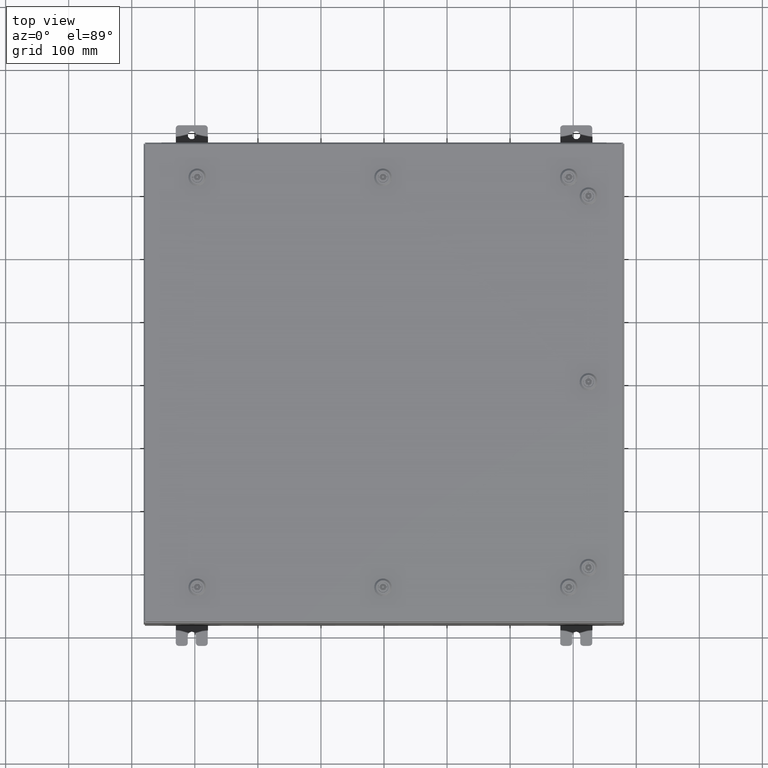
[diagram: clean part render]
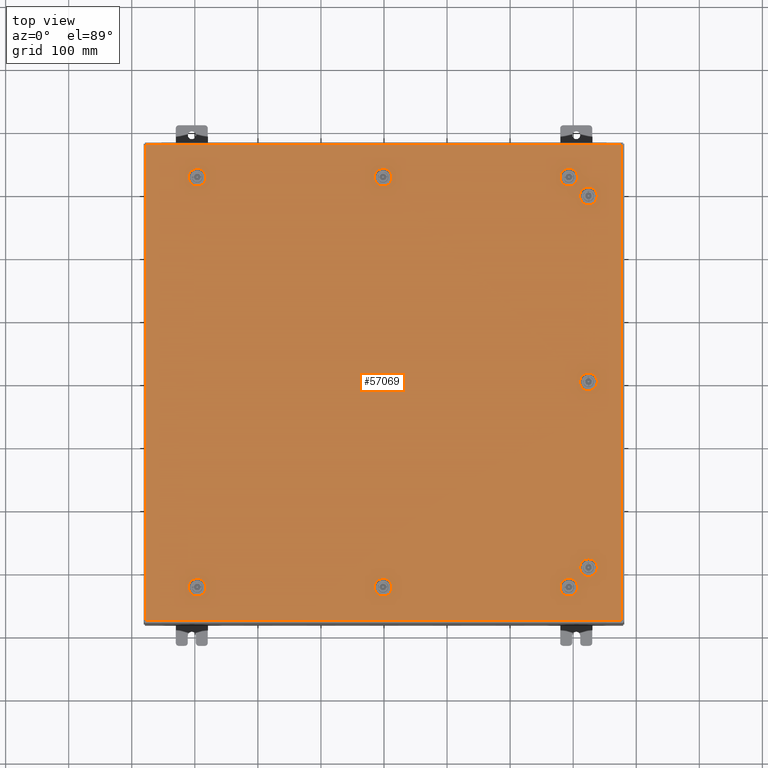
[diagram: same view with one face highlighted and labeled with its STEP entity id]
A machine part, top view. The second image highlights one B-rep face of the part: STEP entity #57069.
In plain terms, the highlighted planar face has unit normal (0, 0, -1).
Its self-contained STEP definition (entity closure, byte-faithful):
#205 = VERTEX_POINT ( 'NONE', #60570 ) ;
#331 = EDGE_CURVE ( 'NONE', #64893, #43094, #19183, .T. ) ;
#400 = EDGE_CURVE ( 'NONE', #8551, #4828, #44568, .T. ) ;
#435 = AXIS2_PLACEMENT_3D ( 'NONE', #62113, #31691, #1348 ) ;
#598 = VECTOR ( 'NONE', #64485, 39.37007874015748100 ) ;
#669 = CARTESIAN_POINT ( 'NONE',  ( -0.1994523752678657400, -13.18279999999999000, 0.0000000000000000000 ) ) ;
#986 = VERTEX_POINT ( 'NONE', #44279 ) ;
#989 = CIRCLE ( 'NONE', #33815, 0.4424999999999961700 ) ;
#1260 = EDGE_CURVE ( 'NONE', #13323, #46178, #4560, .T. ) ;
#1348 = DIRECTION ( 'NONE',  ( 1.000000000000000000, 0.0000000000000000000, 6.982962677686252500E-015 ) ) ;
#1532 = DIRECTION ( 'NONE',  ( 1.000000000000000000, 0.0000000000000000000, 6.982962677686277800E-015 ) ) ;
#1664 = ORIENTED_EDGE ( 'NONE', *, *, #22343, .F. ) ;
#1752 = VERTEX_POINT ( 'NONE', #4967 ) ;
#1821 = CIRCLE ( 'NONE', #24889, 0.4424999999999983400 ) ;
#1896 = DIRECTION ( 'NONE',  ( -1.000000000000000000, 1.095739467627836100E-014, 0.0000000000000000000 ) ) ;
#2114 = AXIS2_PLACEMENT_3D ( 'NONE', #46570, #16168, #51679 ) ;
#2235 = CARTESIAN_POINT ( 'NONE',  ( -14.84979999999999700, -14.84979999999999700, -2.048885995248197400E-016 ) ) ;
#2386 = ORIENTED_EDGE ( 'NONE', *, *, #4836, .F. ) ;
#2408 = LINE ( 'NONE', #47123, #54739 ) ;
#2555 = CARTESIAN_POINT ( 'NONE',  ( 0.1994523752679067700, 13.18279999999998400, 0.0000000000000000000 ) ) ;
#2787 = ORIENTED_EDGE ( 'NONE', *, *, #34301, .F. ) ;
#2951 = VECTOR ( 'NONE', #15252, 39.37007874015748100 ) ;
#3021 = VERTEX_POINT ( 'NONE', #26480 ) ;
#3325 = ORIENTED_EDGE ( 'NONE', *, *, #57304, .F. ) ;
#3448 = CARTESIAN_POINT ( 'NONE',  ( 1.529834876451987200E-014, -12.78779999999999400, -2.521317385144146900E-013 ) ) ;
#3872 = EDGE_CURVE ( 'NONE', #36500, #35626, #31450, .T. ) ;
#3894 = EDGE_CURVE ( 'NONE', #62199, #14280, #4502, .T. ) ;
#3900 = EDGE_LOOP ( 'NONE', ( #50390, #63501, #17277, #1664, #2386 ) ) ;
#3963 = CARTESIAN_POINT ( 'NONE',  ( -11.11999999999998700, -12.78779999999999400, -2.521317385144146900E-013 ) ) ;
#4236 = AXIS2_PLACEMENT_3D ( 'NONE', #21788, #57263, #26875 ) ;
#4448 = CIRCLE ( 'NONE', #33165, 0.4424999999999961700 ) ;
#4462 = CARTESIAN_POINT ( 'NONE',  ( -11.36304762473208800, 13.18279999999998400, 0.0000000000000000000 ) ) ;
#4502 = LINE ( 'NONE', #65616, #2951 ) ;
#4560 = LINE ( 'NONE', #9620, #29924 ) ;
#4828 = VERTEX_POINT ( 'NONE', #30332 ) ;
#4836 = EDGE_CURVE ( 'NONE', #28978, #41267, #4448, .T. ) ;
#4852 = VERTEX_POINT ( 'NONE', #57745 ) ;
#4893 = LINE ( 'NONE', #58389, #16784 ) ;
#4967 = CARTESIAN_POINT ( 'NONE',  ( 0.4425000000000126100, -12.78779999999999400, -2.521317385144146900E-013 ) ) ;
#5069 = CIRCLE ( 'NONE', #56190, 0.4424999999999973400 ) ;
#5098 = FACE_BOUND ( 'NONE', #31542, .T. ) ;
#5961 = CARTESIAN_POINT ( 'NONE',  ( 11.36304762473209700, 12.39279999999999800, -2.414586126232981000E-013 ) ) ;
#6234 = ORIENTED_EDGE ( 'NONE', *, *, #8782, .F. ) ;
#6690 = VECTOR ( 'NONE', #51463, 39.37007874015748100 ) ;
#6709 = FACE_BOUND ( 'NONE', #3900, .T. ) ;
#6889 = LINE ( 'NONE', #60741, #32252 ) ;
#6947 = CIRCLE ( 'NONE', #21381, 0.4424999999999983400 ) ;
#6981 = CARTESIAN_POINT ( 'NONE',  ( 13.18280000000000200, 11.76195237526789900, 0.0000000000000000000 ) ) ;
#7011 = CARTESIAN_POINT ( 'NONE',  ( 0.1994523752678995500, -12.39279999999999800, -2.493734682567286900E-013 ) ) ;
#7100 = EDGE_CURVE ( 'NONE', #35104, #36500, #5069, .T. ) ;
#7179 = ORIENTED_EDGE ( 'NONE', *, *, #65684, .F. ) ;
#7224 = DIRECTION ( 'NONE',  ( 1.000000000000000000, 0.0000000000000000000, -6.982962677686265900E-015 ) ) ;
#7427 = EDGE_CURVE ( 'NONE', #12297, #63191, #59847, .T. ) ;
#7543 = EDGE_LOOP ( 'NONE', ( #14383, #64559, #41786, #14740 ) ) ;
#7994 = ORIENTED_EDGE ( 'NONE', *, *, #41756, .F. ) ;
#8079 = ORIENTED_EDGE ( 'NONE', *, *, #57499, .F. ) ;
#8169 = CIRCLE ( 'NONE', #34136, 0.4424999999999983400 ) ;
#8316 = LINE ( 'NONE', #40780, #6690 ) ;
#8327 = FACE_BOUND ( 'NONE', #15483, .T. ) ;
#8545 = DIRECTION ( 'NONE',  ( 0.0000000000000000000, 1.000000000000000000, 6.982962677686270700E-015 ) ) ;
#8551 = VERTEX_POINT ( 'NONE', #16790 ) ;
#8632 = ORIENTED_EDGE ( 'NONE', *, *, #32833, .F. ) ;
#8775 = CARTESIAN_POINT ( 'NONE',  ( 12.78780000000000600, 11.56250000000001600, 0.0000000000000000000 ) ) ;
#8782 = EDGE_CURVE ( 'NONE', #54814, #62199, #8169, .T. ) ;
#9024 = AXIS2_PLACEMENT_3D ( 'NONE', #17255, #52752, #22382 ) ;
#9123 = ORIENTED_EDGE ( 'NONE', *, *, #60568, .F. ) ;
#9489 = VERTEX_POINT ( 'NONE', #64597 ) ;
#9620 = CARTESIAN_POINT ( 'NONE',  ( 13.18280000000000200, 0.1994523752679009100, 0.0000000000000000000 ) ) ;
#9682 = ORIENTED_EDGE ( 'NONE', *, *, #32854, .F. ) ;
#9738 = DIRECTION ( 'NONE',  ( 1.000000000000000000, -1.095739467627832000E-014, 6.982962677686152300E-015 ) ) ;
#10231 = CARTESIAN_POINT ( 'NONE',  ( 11.36304762473209200, -13.18279999999998400, -1.343139614880270700E-014 ) ) ;
#10593 = LINE ( 'NONE', #7011, #34369 ) ;
#11143 = CIRCLE ( 'NONE', #9024, 0.4424999999999983400 ) ;
#12015 = CARTESIAN_POINT ( 'NONE',  ( -11.36304762473210100, -12.39279999999999800, -2.493734682567286900E-013 ) ) ;
#12046 = AXIS2_PLACEMENT_3D ( 'NONE', #41078, #30889, #51333 ) ;
#12194 = DIRECTION ( 'NONE',  ( 1.000000000000000000, -0.0000000000000000000, -0.0000000000000000000 ) ) ;
#12297 = VERTEX_POINT ( 'NONE', #34476 ) ;
#12433 = DIRECTION ( 'NONE',  ( -0.0000000000000000000, -6.982962677686266700E-015, 1.000000000000000000 ) ) ;
#12629 = LINE ( 'NONE', #31029, #63383 ) ;
#12681 = ORIENTED_EDGE ( 'NONE', *, *, #53684, .T. ) ;
#13145 = EDGE_LOOP ( 'NONE', ( #2787, #56945, #7179, #13226 ) ) ;
#13197 = LINE ( 'NONE', #60633, #63956 ) ;
#13226 = ORIENTED_EDGE ( 'NONE', *, *, #42422, .F. ) ;
#13323 = VERTEX_POINT ( 'NONE', #16164 ) ;
#13687 = ORIENTED_EDGE ( 'NONE', *, *, #55825, .F. ) ;
#13723 = CARTESIAN_POINT ( 'NONE',  ( 0.1994523752679067700, -13.18279999999998400, -2.548900087721007400E-013 ) ) ;
#13871 = DIRECTION ( 'NONE',  ( 1.000000000000000000, 0.0000000000000000000, 0.0000000000000000000 ) ) ;
#13985 = CARTESIAN_POINT ( 'NONE',  ( 11.76195237526786700, -12.39279999999999800, 0.0000000000000000000 ) ) ;
#14084 = LINE ( 'NONE', #13723, #598 ) ;
#14159 = ORIENTED_EDGE ( 'NONE', *, *, #28937, .F. ) ;
#14188 = ORIENTED_EDGE ( 'NONE', *, *, #15878, .F. ) ;
#14280 = VERTEX_POINT ( 'NONE', #33969 ) ;
#14315 = VERTEX_POINT ( 'NONE', #64586 ) ;
#14321 = ORIENTED_EDGE ( 'NONE', *, *, #28592, .F. ) ;
#14383 = ORIENTED_EDGE ( 'NONE', *, *, #1260, .F. ) ;
#14453 = VECTOR ( 'NONE', #52211, 39.37007874015748100 ) ;
#14460 = CIRCLE ( 'NONE', #2114, 0.4424999999999961700 ) ;
#14588 = EDGE_LOOP ( 'NONE', ( #25215, #31810, #49323, #12681 ) ) ;
#14740 = ORIENTED_EDGE ( 'NONE', *, *, #21955, .F. ) ;
#14828 = CARTESIAN_POINT ( 'NONE',  ( 12.00499999999997900, 12.78779999999999400, -2.459413421006457100E-013 ) ) ;
#15059 = VERTEX_POINT ( 'NONE', #24368 ) ;
#15252 = DIRECTION ( 'NONE',  ( 1.000000000000000000, 1.095739467627832000E-014, 7.785697190085955000E-029 ) ) ;
#15393 = LINE ( 'NONE', #27282, #55889 ) ;
#15483 = EDGE_LOOP ( 'NONE', ( #57832, #33225, #8079, #21609 ) ) ;
#15495 = DIRECTION ( 'NONE',  ( -0.0000000000000000000, -6.982962677686266700E-015, 1.000000000000000000 ) ) ;
#15781 = CARTESIAN_POINT ( 'NONE',  ( 1.529834876451987200E-014, 12.78779999999999400, 0.0000000000000000000 ) ) ;
#15853 = DIRECTION ( 'NONE',  ( -1.095739467627838000E-014, -1.000000000000000000, 0.0000000000000000000 ) ) ;
#15878 = EDGE_CURVE ( 'NONE', #51014, #9489, #14460, .T. ) ;
#15939 = DIRECTION ( 'NONE',  ( 0.0000000000000000000, 0.0000000000000000000, 1.000000000000000000 ) ) ;
#16004 = LINE ( 'NONE', #16703, #14453 ) ;
#16164 = CARTESIAN_POINT ( 'NONE',  ( 13.18280000000000700, -0.1994523752678676000, 0.0000000000000000000 ) ) ;
#16168 = DIRECTION ( 'NONE',  ( 6.982962677686266700E-015, -0.0000000000000000000, 1.000000000000000000 ) ) ;
#16250 = VERTEX_POINT ( 'NONE', #3963 ) ;
#16437 = AXIS2_PLACEMENT_3D ( 'NONE', #46341, #15939, #51451 ) ;
#16483 = CARTESIAN_POINT ( 'NONE',  ( 12.78780000000000600, 1.529834876451990400E-014, 0.0000000000000000000 ) ) ;
#16703 = CARTESIAN_POINT ( 'NONE',  ( 11.36304762473210100, -12.39279999999999800, -7.914855633430593000E-015 ) ) ;
#16784 = VECTOR ( 'NONE', #63472, 39.37007874015748100 ) ;
#16790 = CARTESIAN_POINT ( 'NONE',  ( 11.36304762473209700, 12.39279999999999800, -2.414586126232981000E-013 ) ) ;
#17167 = EDGE_CURVE ( 'NONE', #9489, #26797, #46905, .T. ) ;
#17216 = EDGE_CURVE ( 'NONE', #3021, #57021, #45320, .T. ) ;
#17255 = CARTESIAN_POINT ( 'NONE',  ( -11.56249999999998200, 12.78779999999999400, 0.0000000000000000000 ) ) ;
#17277 = ORIENTED_EDGE ( 'NONE', *, *, #17216, .F. ) ;
#17308 = AXIS2_PLACEMENT_3D ( 'NONE', #28843, #64329, #33931 ) ;
#17719 = VERTEX_POINT ( 'NONE', #59701 ) ;
#17927 = AXIS2_PLACEMENT_3D ( 'NONE', #57788, #27410, #62900 ) ;
#18062 = DIRECTION ( 'NONE',  ( 1.000000000000000000, -0.0000000000000000000, -0.0000000000000000000 ) ) ;
#18175 = ORIENTED_EDGE ( 'NONE', *, *, #7100, .F. ) ;
#18187 = EDGE_CURVE ( 'NONE', #43157, #48120, #11143, .T. ) ;
#18246 = DIRECTION ( 'NONE',  ( 0.0000000000000000000, 0.0000000000000000000, 1.000000000000000000 ) ) ;
#18260 = CARTESIAN_POINT ( 'NONE',  ( -11.76195237526786600, -13.18279999999999000, 0.0000000000000000000 ) ) ;
#18618 = FACE_BOUND ( 'NONE', #53941, .T. ) ;
#18982 = EDGE_CURVE ( 'NONE', #22982, #17719, #2408, .T. ) ;
#19183 = LINE ( 'NONE', #22138, #31021 ) ;
#19256 = DIRECTION ( 'NONE',  ( 0.0000000000000000000, 0.0000000000000000000, 1.000000000000000000 ) ) ;
#19385 = VERTEX_POINT ( 'NONE', #44427 ) ;
#20152 = CARTESIAN_POINT ( 'NONE',  ( 12.39280000000001400, 0.1994523752679062100, 0.0000000000000000000 ) ) ;
#20193 = FACE_BOUND ( 'NONE', #13145, .T. ) ;
#20397 = CARTESIAN_POINT ( 'NONE',  ( -11.56249999999998200, -12.78779999999999400, -2.521317385144146900E-013 ) ) ;
#20530 = VERTEX_POINT ( 'NONE', #44040 ) ;
#20579 = EDGE_LOOP ( 'NONE', ( #21848, #7994, #53247, #27657, #9123 ) ) ;
#20765 = CARTESIAN_POINT ( 'NONE',  ( -11.56249999999998200, 12.78779999999999400, 0.0000000000000000000 ) ) ;
#20924 = DIRECTION ( 'NONE',  ( 1.000000000000000000, 0.0000000000000000000, 0.0000000000000000000 ) ) ;
#21087 = LINE ( 'NONE', #45365, #59991 ) ;
#21138 = CARTESIAN_POINT ( 'NONE',  ( 11.36304762473210100, -12.39279999999999800, -7.914855633430593000E-015 ) ) ;
#21261 = CIRCLE ( 'NONE', #40855, 0.4424999999999961700 ) ;
#21381 = AXIS2_PLACEMENT_3D ( 'NONE', #22825, #58286, #27919 ) ;
#21516 = CARTESIAN_POINT ( 'NONE',  ( 12.39280000000001400, -11.76195237526790500, -2.443558770110843000E-013 ) ) ;
#21525 = VECTOR ( 'NONE', #26392, 39.37007874015748100 ) ;
#21602 = DIRECTION ( 'NONE',  ( 1.000000000000000000, 0.0000000000000000000, 0.0000000000000000000 ) ) ;
#21609 = ORIENTED_EDGE ( 'NONE', *, *, #51387, .F. ) ;
#21788 = CARTESIAN_POINT ( 'NONE',  ( 1.529834876451987200E-014, -12.78779999999999400, -2.521317385144146900E-013 ) ) ;
#21848 = ORIENTED_EDGE ( 'NONE', *, *, #52165, .F. ) ;
#21955 = EDGE_CURVE ( 'NONE', #46178, #22982, #43413, .T. ) ;
#22138 = CARTESIAN_POINT ( 'NONE',  ( 14.84979999999999700, 14.84980000000000000, -1.297627796990525000E-015 ) ) ;
#22343 = EDGE_CURVE ( 'NONE', #41267, #3021, #6889, .T. ) ;
#22382 = DIRECTION ( 'NONE',  ( 1.000000000000000000, 0.0000000000000000000, 0.0000000000000000000 ) ) ;
#22401 = CARTESIAN_POINT ( 'NONE',  ( 12.39280000000001400, 11.76195237526790500, 0.0000000000000000000 ) ) ;
#22522 = VERTEX_POINT ( 'NONE', #6981 ) ;
#22825 = CARTESIAN_POINT ( 'NONE',  ( -11.56249999999998200, 12.78779999999999400, 0.0000000000000000000 ) ) ;
#22982 = VERTEX_POINT ( 'NONE', #20152 ) ;
#23249 = ORIENTED_EDGE ( 'NONE', *, *, #51956, .F. ) ;
#23258 = CIRCLE ( 'NONE', #40424, 0.4424999999999983400 ) ;
#23265 = CARTESIAN_POINT ( 'NONE',  ( -11.11999999999998300, 12.78779999999999400, 0.0000000000000000000 ) ) ;
#23299 = CARTESIAN_POINT ( 'NONE',  ( -11.76195237526786700, -12.39279999999999800, -2.493734682567286400E-013 ) ) ;
#23310 = CARTESIAN_POINT ( 'NONE',  ( 12.39280000000001400, 11.76195237526790500, 0.0000000000000000000 ) ) ;
#23567 = ORIENTED_EDGE ( 'NONE', *, *, #50338, .F. ) ;
#23743 = EDGE_CURVE ( 'NONE', #26289, #39053, #21087, .T. ) ;
#24116 = EDGE_CURVE ( 'NONE', #39053, #64893, #38513, .T. ) ;
#24368 = CARTESIAN_POINT ( 'NONE',  ( 0.1994523752678995500, -12.39279999999999800, -2.493734682567286900E-013 ) ) ;
#24889 = AXIS2_PLACEMENT_3D ( 'NONE', #48630, #18246, #53733 ) ;
#24914 = ORIENTED_EDGE ( 'NONE', *, *, #26040, .F. ) ;
#25215 = ORIENTED_EDGE ( 'NONE', *, *, #23743, .T. ) ;
#25506 = DIRECTION ( 'NONE',  ( 0.0000000000000000000, 1.000000000000000000, 6.982962677686304600E-015 ) ) ;
#25859 = DIRECTION ( 'NONE',  ( 1.000000000000000000, 0.0000000000000000000, 0.0000000000000000000 ) ) ;
#26040 = EDGE_CURVE ( 'NONE', #35626, #20530, #56729, .T. ) ;
#26289 = VERTEX_POINT ( 'NONE', #2235 ) ;
#26392 = DIRECTION ( 'NONE',  ( -1.000000000000000000, -1.095739467627832000E-014, 6.982962677686228800E-015 ) ) ;
#26480 = CARTESIAN_POINT ( 'NONE',  ( 11.76195237526786600, -13.18279999999999000, -1.064585916385969600E-014 ) ) ;
#26797 = VERTEX_POINT ( 'NONE', #42674 ) ;
#26875 = DIRECTION ( 'NONE',  ( 0.0000000000000000000, 1.000000000000000000, 6.982962677686270700E-015 ) ) ;
#26973 = CARTESIAN_POINT ( 'NONE',  ( 1.529834876451987200E-014, -12.78779999999999400, -2.521317385144146900E-013 ) ) ;
#27257 = DIRECTION ( 'NONE',  ( 6.982962677686266700E-015, -0.0000000000000000000, 1.000000000000000000 ) ) ;
#27282 = CARTESIAN_POINT ( 'NONE',  ( -11.36304762473208800, 13.18279999999998400, 0.0000000000000000000 ) ) ;
#27290 = CARTESIAN_POINT ( 'NONE',  ( 14.84979999999999700, -14.84979999999999500, -2.048885995248197400E-016 ) ) ;
#27410 = DIRECTION ( 'NONE',  ( 6.982962677686266700E-015, -0.0000000000000000000, 1.000000000000000000 ) ) ;
#27657 = ORIENTED_EDGE ( 'NONE', *, *, #29053, .F. ) ;
#27732 = CARTESIAN_POINT ( 'NONE',  ( 12.39280000000001000, 11.36304762473213300, 0.0000000000000000000 ) ) ;
#27911 = CARTESIAN_POINT ( 'NONE',  ( -14.84979999999999700, 14.84979999999999700, -2.048885995248197400E-016 ) ) ;
#27919 = DIRECTION ( 'NONE',  ( 1.000000000000000000, 0.0000000000000000000, 0.0000000000000000000 ) ) ;
#28221 = AXIS2_PLACEMENT_3D ( 'NONE', #42784, #12433, #47907 ) ;
#28405 = VERTEX_POINT ( 'NONE', #42435 ) ;
#28469 = ORIENTED_EDGE ( 'NONE', *, *, #17167, .F. ) ;
#28592 = EDGE_CURVE ( 'NONE', #20530, #4852, #36135, .T. ) ;
#28843 = CARTESIAN_POINT ( 'NONE',  ( 11.56249999999998200, -12.78779999999999400, -9.280357398645127900E-015 ) ) ;
#28937 = EDGE_CURVE ( 'NONE', #4852, #35104, #40114, .T. ) ;
#28978 = VERTEX_POINT ( 'NONE', #21138 ) ;
#29048 = AXIS2_PLACEMENT_3D ( 'NONE', #20765, #56239, #25859 ) ;
#29053 = EDGE_CURVE ( 'NONE', #1752, #15059, #65521, .T. ) ;
#29299 = CIRCLE ( 'NONE', #29714, 0.4424999999999983400 ) ;
#29714 = AXIS2_PLACEMENT_3D ( 'NONE', #49629, #19256, #54725 ) ;
#29924 = VECTOR ( 'NONE', #38068, 39.37007874015748100 ) ;
#30332 = CARTESIAN_POINT ( 'NONE',  ( 11.76195237526786600, 12.39279999999999800, -2.442441496082410700E-013 ) ) ;
#30660 = CARTESIAN_POINT ( 'NONE',  ( 13.18280000000000200, 11.76195237526789900, 0.0000000000000000000 ) ) ;
#30824 = VERTEX_POINT ( 'NONE', #27732 ) ;
#30880 = DIRECTION ( 'NONE',  ( -5.478697338139220100E-015, 1.000000000000000000, -0.0000000000000000000 ) ) ;
#30883 = DIRECTION ( 'NONE',  ( 0.0000000000000000000, 1.000000000000000000, 6.982962677686270700E-015 ) ) ;
#30889 = DIRECTION ( 'NONE',  ( 0.0000000000000000000, 0.0000000000000000000, -1.000000000000000000 ) ) ;
#31021 = VECTOR ( 'NONE', #36139, 39.37007874015748100 ) ;
#31027 = CIRCLE ( 'NONE', #39318, 0.4424999999999983400 ) ;
#31029 = CARTESIAN_POINT ( 'NONE',  ( 13.18280000000000200, -11.76195237526789900, -2.443558770110843000E-013 ) ) ;
#31072 = VECTOR ( 'NONE', #30880, 39.37007874015748100 ) ;
#31450 = LINE ( 'NONE', #2555, #33052 ) ;
#31542 = EDGE_LOOP ( 'NONE', ( #14321, #24914, #37548, #18175, #14159 ) ) ;
#31691 = DIRECTION ( 'NONE',  ( -6.982962677686266700E-015, -6.982962677686266700E-015, 1.000000000000000000 ) ) ;
#31810 = ORIENTED_EDGE ( 'NONE', *, *, #24116, .T. ) ;
#32045 = DIRECTION ( 'NONE',  ( 0.0000000000000000000, 1.000000000000000000, 6.982962677686304600E-015 ) ) ;
#32062 = FACE_BOUND ( 'NONE', #45865, .T. ) ;
#32228 = EDGE_CURVE ( 'NONE', #4828, #51014, #55791, .T. ) ;
#32252 = VECTOR ( 'NONE', #9738, 39.37007874015748100 ) ;
#32833 = EDGE_CURVE ( 'NONE', #26797, #8551, #23258, .T. ) ;
#32840 = VECTOR ( 'NONE', #15853, 39.37007874015748100 ) ;
#32854 = EDGE_CURVE ( 'NONE', #43111, #14315, #48631, .T. ) ;
#33052 = VECTOR ( 'NONE', #1896, 39.37007874015748100 ) ;
#33165 = AXIS2_PLACEMENT_3D ( 'NONE', #58499, #45797, #1532 ) ;
#33225 = ORIENTED_EDGE ( 'NONE', *, *, #42012, .F. ) ;
#33542 = CIRCLE ( 'NONE', #63558, 0.4424999999999961700 ) ;
#33815 = AXIS2_PLACEMENT_3D ( 'NONE', #45906, #15495, #51017 ) ;
#33931 = DIRECTION ( 'NONE',  ( 1.000000000000000000, 0.0000000000000000000, 6.982962677686252500E-015 ) ) ;
#33969 = CARTESIAN_POINT ( 'NONE',  ( -11.36304762473209200, -13.18279999999998400, -2.548900087721007400E-013 ) ) ;
#33972 = ORIENTED_EDGE ( 'NONE', *, *, #400, .F. ) ;
#34064 = ORIENTED_EDGE ( 'NONE', *, *, #32228, .F. ) ;
#34136 = AXIS2_PLACEMENT_3D ( 'NONE', #35317, #35543, #30883 ) ;
#34301 = EDGE_CURVE ( 'NONE', #63191, #48500, #4893, .T. ) ;
#34369 = VECTOR ( 'NONE', #51428, 39.37007874015748100 ) ;
#34476 = CARTESIAN_POINT ( 'NONE',  ( 13.18280000000000400, -11.36304762473213100, -2.415703400261412700E-013 ) ) ;
#35104 = VERTEX_POINT ( 'NONE', #44838 ) ;
#35317 = CARTESIAN_POINT ( 'NONE',  ( -11.56249999999998200, -12.78779999999999400, -2.521317385144146900E-013 ) ) ;
#35413 = EDGE_CURVE ( 'NONE', #16250, #40276, #61182, .T. ) ;
#35543 = DIRECTION ( 'NONE',  ( -0.0000000000000000000, -6.982962677686266700E-015, 1.000000000000000000 ) ) ;
#35626 = VERTEX_POINT ( 'NONE', #44553 ) ;
#35728 = CIRCLE ( 'NONE', #17308, 0.4424999999999983400 ) ;
#36124 = DIRECTION ( 'NONE',  ( 5.478697338139220100E-015, 1.000000000000000000, 6.982962677686306200E-015 ) ) ;
#36135 = LINE ( 'NONE', #48669, #49691 ) ;
#36139 = DIRECTION ( 'NONE',  ( -1.000000000000000000, -0.0000000000000000000, -0.0000000000000000000 ) ) ;
#36500 = VERTEX_POINT ( 'NONE', #45031 ) ;
#36506 = ORIENTED_EDGE ( 'NONE', *, *, #18187, .F. ) ;
#36882 = VECTOR ( 'NONE', #62396, 39.37007874015748100 ) ;
#37127 = AXIS2_PLACEMENT_3D ( 'NONE', #16483, #51981, #21602 ) ;
#37309 = CARTESIAN_POINT ( 'NONE',  ( 14.84979999999999700, -14.84979999999999500, -2.048885995248197400E-016 ) ) ;
#37424 = CARTESIAN_POINT ( 'NONE',  ( -11.36304762473209700, 12.39279999999999800, 0.0000000000000000000 ) ) ;
#37548 = ORIENTED_EDGE ( 'NONE', *, *, #3872, .F. ) ;
#38068 = DIRECTION ( 'NONE',  ( -5.478697338139235000E-015, 1.000000000000000000, -0.0000000000000000000 ) ) ;
#38513 = LINE ( 'NONE', #37309, #36882 ) ;
#38748 = ORIENTED_EDGE ( 'NONE', *, *, #35413, .F. ) ;
#38906 = DIRECTION ( 'NONE',  ( -0.0000000000000000000, -6.982962677686266700E-015, 1.000000000000000000 ) ) ;
#39053 = VERTEX_POINT ( 'NONE', #27290 ) ;
#39318 = AXIS2_PLACEMENT_3D ( 'NONE', #3448, #38906, #8545 ) ;
#40114 = CIRCLE ( 'NONE', #53112, 0.4424999999999973400 ) ;
#40231 = DIRECTION ( 'NONE',  ( 1.000000000000000000, -0.0000000000000000000, -0.0000000000000000000 ) ) ;
#40276 = VERTEX_POINT ( 'NONE', #12015 ) ;
#40424 = AXIS2_PLACEMENT_3D ( 'NONE', #57634, #27257, #62741 ) ;
#40780 = CARTESIAN_POINT ( 'NONE',  ( -11.36304762473210100, -12.39279999999999800, -2.493734682567286900E-013 ) ) ;
#40855 = AXIS2_PLACEMENT_3D ( 'NONE', #8775, #44222, #13871 ) ;
#40956 = CARTESIAN_POINT ( 'NONE',  ( 1.529834876451987200E-014, 12.78779999999999400, 0.0000000000000000000 ) ) ;
#41078 = CARTESIAN_POINT ( 'NONE',  ( 0.0000000000000000000, 0.0000000000000000000, 0.0000000000000000000 ) ) ;
#41172 = DIRECTION ( 'NONE',  ( 0.0000000000000000000, 0.0000000000000000000, 1.000000000000000000 ) ) ;
#41267 = VERTEX_POINT ( 'NONE', #10231 ) ;
#41411 = DIRECTION ( 'NONE',  ( 1.000000000000000000, 0.0000000000000000000, 0.0000000000000000000 ) ) ;
#41756 = EDGE_CURVE ( 'NONE', #986, #58443, #33542, .T. ) ;
#41786 = ORIENTED_EDGE ( 'NONE', *, *, #18982, .F. ) ;
#42012 = EDGE_CURVE ( 'NONE', #30824, #205, #1821, .T. ) ;
#42422 = EDGE_CURVE ( 'NONE', #48500, #19385, #989, .T. ) ;
#42435 = CARTESIAN_POINT ( 'NONE',  ( -11.76195237526786200, 13.18279999999999000, 0.0000000000000000000 ) ) ;
#42674 = CARTESIAN_POINT ( 'NONE',  ( 11.36304762473208800, 13.18279999999998400, -2.414586126232980000E-013 ) ) ;
#42784 = CARTESIAN_POINT ( 'NONE',  ( -11.56249999999998200, -12.78779999999999400, -2.521317385144146900E-013 ) ) ;
#43094 = VERTEX_POINT ( 'NONE', #27911 ) ;
#43111 = VERTEX_POINT ( 'NONE', #58509 ) ;
#43157 = VERTEX_POINT ( 'NONE', #23265 ) ;
#43413 = CIRCLE ( 'NONE', #37127, 0.4424999999999983400 ) ;
#44040 = CARTESIAN_POINT ( 'NONE',  ( -0.1994523752678689600, 12.39279999999999800, 0.0000000000000000000 ) ) ;
#44075 = CARTESIAN_POINT ( 'NONE',  ( 0.1994523752679070700, -13.18279999999998400, -2.548900087721007400E-013 ) ) ;
#44222 = DIRECTION ( 'NONE',  ( 0.0000000000000000000, 0.0000000000000000000, 1.000000000000000000 ) ) ;
#44275 = EDGE_CURVE ( 'NONE', #57021, #45860, #35728, .T. ) ;
#44277 = CARTESIAN_POINT ( 'NONE',  ( 14.84979999999999700, 14.84980000000000000, -1.297627796990525000E-015 ) ) ;
#44279 = CARTESIAN_POINT ( 'NONE',  ( -0.1994523752678689600, -12.39279999999999800, -2.493734682567286400E-013 ) ) ;
#44427 = CARTESIAN_POINT ( 'NONE',  ( 13.18280000000000200, -11.76195237526789900, -2.443558770110843000E-013 ) ) ;
#44553 = CARTESIAN_POINT ( 'NONE',  ( -0.1994523752678657400, 13.18279999999999000, 0.0000000000000000000 ) ) ;
#44568 = LINE ( 'NONE', #5961, #56463 ) ;
#44838 = CARTESIAN_POINT ( 'NONE',  ( 0.4425000000000126100, 12.78779999999999400, 0.0000000000000000000 ) ) ;
#45031 = CARTESIAN_POINT ( 'NONE',  ( 0.1994523752679068500, 13.18279999999998400, 0.0000000000000000000 ) ) ;
#45313 = DIRECTION ( 'NONE',  ( 0.0000000000000000000, -1.000000000000000000, 0.0000000000000000000 ) ) ;
#45320 = CIRCLE ( 'NONE', #435, 0.4424999999999983400 ) ;
#45365 = CARTESIAN_POINT ( 'NONE',  ( -14.84979999999999700, -14.84979999999999700, -2.048885995248197400E-016 ) ) ;
#45584 = FACE_BOUND ( 'NONE', #20579, .T. ) ;
#45797 = DIRECTION ( 'NONE',  ( -6.982962677686266700E-015, -6.982962677686266700E-015, 1.000000000000000000 ) ) ;
#45860 = VERTEX_POINT ( 'NONE', #13985 ) ;
#45865 = EDGE_LOOP ( 'NONE', ( #28469, #14188, #34064, #33972, #8632 ) ) ;
#45906 = CARTESIAN_POINT ( 'NONE',  ( 12.78780000000000600, -11.56250000000001600, -2.429631085186127900E-013 ) ) ;
#46178 = VERTEX_POINT ( 'NONE', #52327 ) ;
#46232 = PLANE ( 'NONE',  #12046 ) ;
#46341 = CARTESIAN_POINT ( 'NONE',  ( 1.529834876451987200E-014, 12.78779999999999400, 0.0000000000000000000 ) ) ;
#46443 = VERTEX_POINT ( 'NONE', #44075 ) ;
#46570 = CARTESIAN_POINT ( 'NONE',  ( 11.56249999999998200, 12.78779999999999400, -2.428513811157696100E-013 ) ) ;
#46905 = LINE ( 'NONE', #56780, #21525 ) ;
#47123 = CARTESIAN_POINT ( 'NONE',  ( 12.39280000000001400, 0.1994523752679053800, 0.0000000000000000000 ) ) ;
#47179 = FACE_BOUND ( 'NONE', #7543, .T. ) ;
#47262 = VERTEX_POINT ( 'NONE', #22401 ) ;
#47466 = CARTESIAN_POINT ( 'NONE',  ( 12.39280000000001000, -11.36304762473213300, 0.0000000000000000000 ) ) ;
#47473 = DIRECTION ( 'NONE',  ( -0.0000000000000000000, -6.982962677686266700E-015, 1.000000000000000000 ) ) ;
#47496 = EDGE_CURVE ( 'NONE', #17719, #13323, #29299, .T. ) ;
#47907 = DIRECTION ( 'NONE',  ( 0.0000000000000000000, 1.000000000000000000, 6.982962677686304600E-015 ) ) ;
#48103 = AXIS2_PLACEMENT_3D ( 'NONE', #20397, #55881, #25506 ) ;
#48120 = VERTEX_POINT ( 'NONE', #4462 ) ;
#48500 = VERTEX_POINT ( 'NONE', #21516 ) ;
#48630 = CARTESIAN_POINT ( 'NONE',  ( 12.78780000000000600, 11.56250000000001600, 0.0000000000000000000 ) ) ;
#48631 = LINE ( 'NONE', #37424, #62108 ) ;
#48669 = CARTESIAN_POINT ( 'NONE',  ( 0.1994523752678995500, 12.39279999999999800, 0.0000000000000000000 ) ) ;
#49323 = ORIENTED_EDGE ( 'NONE', *, *, #331, .T. ) ;
#49629 = CARTESIAN_POINT ( 'NONE',  ( 12.78780000000000600, 1.529834876451990400E-014, 0.0000000000000000000 ) ) ;
#49691 = VECTOR ( 'NONE', #18062, 39.37007874015748100 ) ;
#50338 = EDGE_CURVE ( 'NONE', #14280, #16250, #53102, .T. ) ;
#50390 = ORIENTED_EDGE ( 'NONE', *, *, #61979, .F. ) ;
#51014 = VERTEX_POINT ( 'NONE', #14828 ) ;
#51017 = DIRECTION ( 'NONE',  ( 0.0000000000000000000, 1.000000000000000000, 6.982962677686304600E-015 ) ) ;
#51301 = DIRECTION ( 'NONE',  ( 0.0000000000000000000, 0.0000000000000000000, 1.000000000000000000 ) ) ;
#51333 = DIRECTION ( 'NONE',  ( -1.000000000000000000, 0.0000000000000000000, -0.0000000000000000000 ) ) ;
#51387 = EDGE_CURVE ( 'NONE', #22522, #47262, #21261, .T. ) ;
#51428 = DIRECTION ( 'NONE',  ( -1.000000000000000000, 0.0000000000000000000, 7.785697190086061500E-029 ) ) ;
#51451 = DIRECTION ( 'NONE',  ( 1.000000000000000000, 0.0000000000000000000, 0.0000000000000000000 ) ) ;
#51463 = DIRECTION ( 'NONE',  ( -1.000000000000000000, 0.0000000000000000000, 7.785697190086082800E-029 ) ) ;
#51564 = ORIENTED_EDGE ( 'NONE', *, *, #3894, .F. ) ;
#51679 = DIRECTION ( 'NONE',  ( -1.000000000000000000, 0.0000000000000000000, 6.982962677686304600E-015 ) ) ;
#51956 = EDGE_CURVE ( 'NONE', #14315, #43157, #6947, .T. ) ;
#51981 = DIRECTION ( 'NONE',  ( 0.0000000000000000000, 0.0000000000000000000, 1.000000000000000000 ) ) ;
#52165 = EDGE_CURVE ( 'NONE', #58443, #46443, #14084, .T. ) ;
#52211 = DIRECTION ( 'NONE',  ( -1.000000000000000000, -0.0000000000000000000, -6.982962677686306200E-015 ) ) ;
#52239 = DIRECTION ( 'NONE',  ( -1.095739467627836100E-014, -1.000000000000000000, 0.0000000000000000000 ) ) ;
#52327 = CARTESIAN_POINT ( 'NONE',  ( 13.18280000000000200, 0.1994523752679009100, 0.0000000000000000000 ) ) ;
#52752 = DIRECTION ( 'NONE',  ( 0.0000000000000000000, 0.0000000000000000000, 1.000000000000000000 ) ) ;
#52856 = EDGE_CURVE ( 'NONE', #28405, #43111, #59286, .T. ) ;
#53102 = CIRCLE ( 'NONE', #48103, 0.4424999999999961700 ) ;
#53112 = AXIS2_PLACEMENT_3D ( 'NONE', #15781, #51301, #20924 ) ;
#53247 = ORIENTED_EDGE ( 'NONE', *, *, #58505, .F. ) ;
#53684 = EDGE_CURVE ( 'NONE', #43094, #26289, #13197, .T. ) ;
#53733 = DIRECTION ( 'NONE',  ( 1.000000000000000000, 0.0000000000000000000, 0.0000000000000000000 ) ) ;
#53941 = EDGE_LOOP ( 'NONE', ( #9682, #61048, #3325, #36506, #23249 ) ) ;
#54725 = DIRECTION ( 'NONE',  ( 1.000000000000000000, 0.0000000000000000000, 0.0000000000000000000 ) ) ;
#54739 = VECTOR ( 'NONE', #52239, 39.37007874015748100 ) ;
#54814 = VERTEX_POINT ( 'NONE', #23299 ) ;
#55791 = CIRCLE ( 'NONE', #17927, 0.4424999999999961700 ) ;
#55825 = EDGE_CURVE ( 'NONE', #40276, #54814, #8316, .T. ) ;
#55881 = DIRECTION ( 'NONE',  ( -0.0000000000000000000, -6.982962677686266700E-015, 1.000000000000000000 ) ) ;
#55889 = VECTOR ( 'NONE', #57662, 39.37007874015748100 ) ;
#56190 = AXIS2_PLACEMENT_3D ( 'NONE', #40956, #41172, #41411 ) ;
#56239 = DIRECTION ( 'NONE',  ( 0.0000000000000000000, 0.0000000000000000000, 1.000000000000000000 ) ) ;
#56463 = VECTOR ( 'NONE', #7224, 39.37007874015748100 ) ;
#56579 = CARTESIAN_POINT ( 'NONE',  ( 12.78780000000000600, -11.56250000000001600, -2.429631085186127900E-013 ) ) ;
#56729 = CIRCLE ( 'NONE', #16437, 0.4424999999999969000 ) ;
#56780 = CARTESIAN_POINT ( 'NONE',  ( 11.36304762473208800, 13.18279999999998400, -2.414586126232980000E-013 ) ) ;
#56945 = ORIENTED_EDGE ( 'NONE', *, *, #7427, .F. ) ;
#57021 = VERTEX_POINT ( 'NONE', #61132 ) ;
#57069 = ADVANCED_FACE ( 'NONE', ( #20193, #8327, #47179, #6709, #59107, #45584, #32062, #18618, #5098, #57473 ), #46232, .F. ) ;
#57263 = DIRECTION ( 'NONE',  ( -0.0000000000000000000, -6.982962677686266700E-015, 1.000000000000000000 ) ) ;
#57304 = EDGE_CURVE ( 'NONE', #48120, #28405, #15393, .T. ) ;
#57473 = FACE_OUTER_BOUND ( 'NONE', #14588, .T. ) ;
#57499 = EDGE_CURVE ( 'NONE', #47262, #30824, #61453, .T. ) ;
#57634 = CARTESIAN_POINT ( 'NONE',  ( 11.56249999999998200, 12.78779999999999400, -2.428513811157696100E-013 ) ) ;
#57662 = DIRECTION ( 'NONE',  ( -1.000000000000000000, 1.095739467627832000E-014, 0.0000000000000000000 ) ) ;
#57672 = DIRECTION ( 'NONE',  ( 0.0000000000000000000, 1.000000000000000000, 6.982962677686270700E-015 ) ) ;
#57745 = CARTESIAN_POINT ( 'NONE',  ( 0.1994523752678995500, 12.39279999999999800, 0.0000000000000000000 ) ) ;
#57788 = CARTESIAN_POINT ( 'NONE',  ( 11.56249999999998200, 12.78779999999999400, -2.428513811157696100E-013 ) ) ;
#57832 = ORIENTED_EDGE ( 'NONE', *, *, #61765, .F. ) ;
#58110 = LINE ( 'NONE', #30660, #31072 ) ;
#58286 = DIRECTION ( 'NONE',  ( 0.0000000000000000000, 0.0000000000000000000, 1.000000000000000000 ) ) ;
#58389 = CARTESIAN_POINT ( 'NONE',  ( 12.39280000000001400, -11.76195237526790500, -2.443558770110843500E-013 ) ) ;
#58443 = VERTEX_POINT ( 'NONE', #669 ) ;
#58499 = CARTESIAN_POINT ( 'NONE',  ( 11.56249999999998200, -12.78779999999999400, -9.280357398645127900E-015 ) ) ;
#58505 = EDGE_CURVE ( 'NONE', #15059, #986, #10593, .T. ) ;
#58509 = CARTESIAN_POINT ( 'NONE',  ( -11.76195237526786600, 12.39279999999999800, 0.0000000000000000000 ) ) ;
#59107 = FACE_BOUND ( 'NONE', #64730, .T. ) ;
#59286 = CIRCLE ( 'NONE', #29048, 0.4424999999999961700 ) ;
#59701 = CARTESIAN_POINT ( 'NONE',  ( 12.39280000000001000, -0.1994523752678671000, 0.0000000000000000000 ) ) ;
#59847 = CIRCLE ( 'NONE', #65131, 0.4424999999999983400 ) ;
#59991 = VECTOR ( 'NONE', #40231, 39.37007874015748100 ) ;
#60568 = EDGE_CURVE ( 'NONE', #46443, #1752, #31027, .T. ) ;
#60570 = CARTESIAN_POINT ( 'NONE',  ( 13.18280000000000400, 11.36304762473213100, 0.0000000000000000000 ) ) ;
#60633 = CARTESIAN_POINT ( 'NONE',  ( -14.84979999999999700, 14.84979999999999700, -2.048885995248197400E-016 ) ) ;
#60741 = CARTESIAN_POINT ( 'NONE',  ( 11.36304762473209200, -13.18279999999998400, -1.343139614880271000E-014 ) ) ;
#61048 = ORIENTED_EDGE ( 'NONE', *, *, #52856, .F. ) ;
#61132 = CARTESIAN_POINT ( 'NONE',  ( 12.00499999999998100, -12.78779999999999400, -6.190396413768972700E-015 ) ) ;
#61182 = CIRCLE ( 'NONE', #28221, 0.4424999999999961700 ) ;
#61453 = LINE ( 'NONE', #23310, #32840 ) ;
#61765 = EDGE_CURVE ( 'NONE', #205, #22522, #58110, .T. ) ;
#61979 = EDGE_CURVE ( 'NONE', #45860, #28978, #16004, .T. ) ;
#62108 = VECTOR ( 'NONE', #12194, 39.37007874015748100 ) ;
#62113 = CARTESIAN_POINT ( 'NONE',  ( 11.56249999999998200, -12.78779999999999400, -9.280357398645127900E-015 ) ) ;
#62199 = VERTEX_POINT ( 'NONE', #18260 ) ;
#62396 = DIRECTION ( 'NONE',  ( 0.0000000000000000000, 1.000000000000000000, 0.0000000000000000000 ) ) ;
#62457 = DIRECTION ( 'NONE',  ( -0.0000000000000000000, -6.982962677686266700E-015, 1.000000000000000000 ) ) ;
#62741 = DIRECTION ( 'NONE',  ( -1.000000000000000000, 0.0000000000000000000, 6.982962677686270700E-015 ) ) ;
#62900 = DIRECTION ( 'NONE',  ( -1.000000000000000000, 0.0000000000000000000, 6.982962677686304600E-015 ) ) ;
#63191 = VERTEX_POINT ( 'NONE', #47466 ) ;
#63383 = VECTOR ( 'NONE', #36124, 39.37007874015748100 ) ;
#63472 = DIRECTION ( 'NONE',  ( 1.095739467627838000E-014, -1.000000000000000000, -6.982962677686345600E-015 ) ) ;
#63501 = ORIENTED_EDGE ( 'NONE', *, *, #44275, .F. ) ;
#63558 = AXIS2_PLACEMENT_3D ( 'NONE', #26973, #62457, #32045 ) ;
#63956 = VECTOR ( 'NONE', #45313, 39.37007874015748100 ) ;
#64329 = DIRECTION ( 'NONE',  ( -6.982962677686266700E-015, -6.982962677686266700E-015, 1.000000000000000000 ) ) ;
#64485 = DIRECTION ( 'NONE',  ( 1.000000000000000000, 1.095739467627836100E-014, 7.785697190085984100E-029 ) ) ;
#64559 = ORIENTED_EDGE ( 'NONE', *, *, #47496, .F. ) ;
#64586 = CARTESIAN_POINT ( 'NONE',  ( -11.36304762473209700, 12.39279999999999800, 0.0000000000000000000 ) ) ;
#64597 = CARTESIAN_POINT ( 'NONE',  ( 11.76195237526786200, 13.18279999999999000, 0.0000000000000000000 ) ) ;
#64730 = EDGE_LOOP ( 'NONE', ( #51564, #6234, #13687, #38748, #23567 ) ) ;
#64893 = VERTEX_POINT ( 'NONE', #44277 ) ;
#65131 = AXIS2_PLACEMENT_3D ( 'NONE', #56579, #47473, #57672 ) ;
#65521 = CIRCLE ( 'NONE', #4236, 0.4424999999999983400 ) ;
#65616 = CARTESIAN_POINT ( 'NONE',  ( -11.36304762473209200, -13.18279999999998400, -2.548900087721007400E-013 ) ) ;
#65684 = EDGE_CURVE ( 'NONE', #19385, #12297, #12629, .T. ) ;